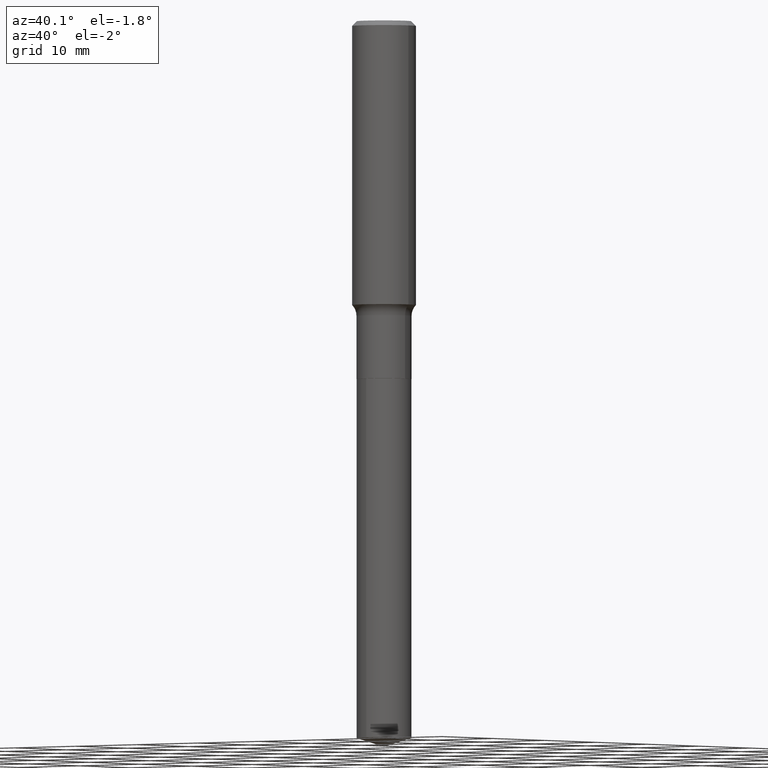
[diagram: clean part render]
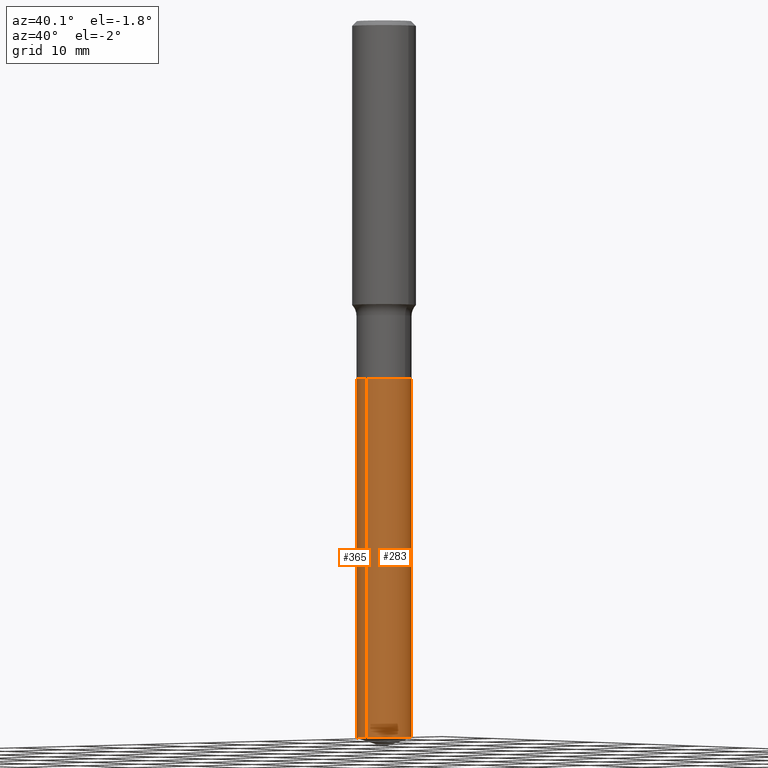
[diagram: same view with one multi-face feature highlighted, each face labeled with its STEP entity id]
A machine part, auxiliary view. The highlighted faces form ONE feature: a constant-radius fillet chain: 2 tangent blend faces with common blend radius 3.4506 mm. The faces share edges in the B-rep.
Their STEP definitions:
[1] entity #283 (Cylinder):
#16 = VECTOR ( 'NONE', #222, 39.37007874015748143 ) ;
#42 = EDGE_LOOP ( 'NONE', ( #78, #265, #342, #371 ) ) ;
#51 = CARTESIAN_POINT ( 'NONE',  ( 8.656689508304857644E-29, -1.235929816798233423E-14, -3.539866659530789939 ) ) ;
#69 = LINE ( 'NONE', #184, #457 ) ;
#73 = CARTESIAN_POINT ( 'NONE',  ( 9.652723065301828668E-16, 0.1358499999999876473, -3.539866659530790383 ) ) ;
#78 = ORIENTED_EDGE ( 'NONE', *, *, #112, .T. ) ;
#98 = AXIS2_PLACEMENT_3D ( 'NONE', #51, #119, #318 ) ;
#102 = CARTESIAN_POINT ( 'NONE',  ( 4.323099755574085042E-29, -6.172240710806913353E-15, -1.767800000000000260 ) ) ;
#104 = LINE ( 'NONE', #341, #16 ) ;
#106 = AXIS2_PLACEMENT_3D ( 'NONE', #288, #134, #410 ) ;
#110 = CARTESIAN_POINT ( 'NONE',  ( 9.652723065301826696E-16, 0.1358499999999938090, -1.767800000000000704 ) ) ;
#112 = EDGE_CURVE ( 'NONE', #338, #378, #252, .T. ) ;
#119 = DIRECTION ( 'NONE',  ( -2.445500415812927878E-29, 3.491436072057040114E-15, 1.000000000000000000 ) ) ;
#134 = DIRECTION ( 'NONE',  ( -2.445500415812927878E-29, 3.491436072057040114E-15, 1.000000000000000000 ) ) ;
#184 = CARTESIAN_POINT ( 'NONE',  ( 9.652723065301390850E-16, 0.1358499999999938368, -1.767800000000000704 ) ) ;
#215 = DIRECTION ( 'NONE',  ( -2.445500415812927878E-29, 3.491436072057040114E-15, 1.000000000000000000 ) ) ;
#222 = DIRECTION ( 'NONE',  ( -2.445500415812928158E-29, 3.491436072057040114E-15, 1.000000000000000000 ) ) ;
#224 = EDGE_CURVE ( 'NONE', #385, #456, #301, .T. ) ;
#230 = DIRECTION ( 'NONE',  ( -2.445500415812928158E-29, 3.491436072057040114E-15, 1.000000000000000000 ) ) ;
#252 = CIRCLE ( 'NONE', #98, 0.1358499999999999985 ) ;
#265 = ORIENTED_EDGE ( 'NONE', *, *, #440, .T. ) ;
#266 = CARTESIAN_POINT ( 'NONE',  ( -9.486354797635925800E-16, -0.1358500000000124053, -3.539866659530789050 ) ) ;
#283 = ADVANCED_FACE ( 'NONE', ( #406 ), #471, .T. ) ;
#288 = CARTESIAN_POINT ( 'NONE',  ( 4.323099755574085042E-29, -6.172240710806913353E-15, -1.767800000000000260 ) ) ;
#293 = DIRECTION ( 'NONE',  ( -6.982962677686266711E-15, -1.000000000000000000, 4.021859394426593130E-15 ) ) ;
#301 = CIRCLE ( 'NONE', #413, 0.1358499999999999985 ) ;
#318 = DIRECTION ( 'NONE',  ( -6.982962677686266711E-15, -1.000000000000000000, 4.021859394426593130E-15 ) ) ;
#338 = VERTEX_POINT ( 'NONE', #266 ) ;
#341 = CARTESIAN_POINT ( 'NONE',  ( -9.486354797636361646E-16, -0.1358500000000061603, -1.767799999999999594 ) ) ;
#342 = ORIENTED_EDGE ( 'NONE', *, *, #224, .F. ) ;
#371 = ORIENTED_EDGE ( 'NONE', *, *, #380, .F. ) ;
#378 = VERTEX_POINT ( 'NONE', #73 ) ;
#380 = EDGE_CURVE ( 'NONE', #338, #385, #104, .T. ) ;
#385 = VERTEX_POINT ( 'NONE', #485 ) ;
#406 = FACE_OUTER_BOUND ( 'NONE', #42, .T. ) ;
#410 = DIRECTION ( 'NONE',  ( -6.982962677686266711E-15, -1.000000000000000000, 4.021859394426593130E-15 ) ) ;
#413 = AXIS2_PLACEMENT_3D ( 'NONE', #102, #215, #293 ) ;
#440 = EDGE_CURVE ( 'NONE', #378, #456, #69, .T. ) ;
#456 = VERTEX_POINT ( 'NONE', #110 ) ;
#457 = VECTOR ( 'NONE', #230, 39.37007874015748143 ) ;
#471 = CYLINDRICAL_SURFACE ( 'NONE', #106, 0.1358499999999999985 ) ;
#485 = CARTESIAN_POINT ( 'NONE',  ( -9.486354797636361646E-16, -0.1358500000000061603, -1.767799999999999594 ) ) ;
[2] entity #365 (Cylinder):
#16 = VECTOR ( 'NONE', #222, 39.37007874015748143 ) ;
#22 = AXIS2_PLACEMENT_3D ( 'NONE', #463, #280, #124 ) ;
#40 = EDGE_LOOP ( 'NONE', ( #226, #330, #259, #304 ) ) ;
#69 = LINE ( 'NONE', #184, #457 ) ;
#73 = CARTESIAN_POINT ( 'NONE',  ( 9.652723065301828668E-16, 0.1358499999999876473, -3.539866659530790383 ) ) ;
#104 = LINE ( 'NONE', #341, #16 ) ;
#110 = CARTESIAN_POINT ( 'NONE',  ( 9.652723065301826696E-16, 0.1358499999999938090, -1.767800000000000704 ) ) ;
#118 = EDGE_CURVE ( 'NONE', #456, #385, #437, .T. ) ;
#124 = DIRECTION ( 'NONE',  ( -6.982962677686266711E-15, -1.000000000000000000, 4.021859394426593130E-15 ) ) ;
#139 = DIRECTION ( 'NONE',  ( -2.445500415812927878E-29, 3.491436072057040114E-15, 1.000000000000000000 ) ) ;
#150 = CIRCLE ( 'NONE', #349, 0.1358499999999999985 ) ;
#166 = DIRECTION ( 'NONE',  ( -2.445500415812927878E-29, 3.491436072057040114E-15, 1.000000000000000000 ) ) ;
#182 = AXIS2_PLACEMENT_3D ( 'NONE', #270, #139, #425 ) ;
#184 = CARTESIAN_POINT ( 'NONE',  ( 9.652723065301390850E-16, 0.1358499999999938368, -1.767800000000000704 ) ) ;
#207 = EDGE_CURVE ( 'NONE', #378, #338, #150, .T. ) ;
#222 = DIRECTION ( 'NONE',  ( -2.445500415812928158E-29, 3.491436072057040114E-15, 1.000000000000000000 ) ) ;
#226 = ORIENTED_EDGE ( 'NONE', *, *, #440, .F. ) ;
#230 = DIRECTION ( 'NONE',  ( -2.445500415812928158E-29, 3.491436072057040114E-15, 1.000000000000000000 ) ) ;
#259 = ORIENTED_EDGE ( 'NONE', *, *, #380, .T. ) ;
#266 = CARTESIAN_POINT ( 'NONE',  ( -9.486354797635925800E-16, -0.1358500000000124053, -3.539866659530789050 ) ) ;
#270 = CARTESIAN_POINT ( 'NONE',  ( 4.323099755574085042E-29, -6.172240710806913353E-15, -1.767800000000000260 ) ) ;
#280 = DIRECTION ( 'NONE',  ( -2.445500415812927878E-29, 3.491436072057040114E-15, 1.000000000000000000 ) ) ;
#304 = ORIENTED_EDGE ( 'NONE', *, *, #118, .F. ) ;
#306 = CYLINDRICAL_SURFACE ( 'NONE', #182, 0.1358499999999999985 ) ;
#326 = DIRECTION ( 'NONE',  ( -6.982962677686266711E-15, -1.000000000000000000, 4.021859394426593130E-15 ) ) ;
#330 = ORIENTED_EDGE ( 'NONE', *, *, #207, .T. ) ;
#338 = VERTEX_POINT ( 'NONE', #266 ) ;
#341 = CARTESIAN_POINT ( 'NONE',  ( -9.486354797636361646E-16, -0.1358500000000061603, -1.767799999999999594 ) ) ;
#349 = AXIS2_PLACEMENT_3D ( 'NONE', #438, #166, #326 ) ;
#365 = ADVANCED_FACE ( 'NONE', ( #417 ), #306, .T. ) ;
#378 = VERTEX_POINT ( 'NONE', #73 ) ;
#380 = EDGE_CURVE ( 'NONE', #338, #385, #104, .T. ) ;
#385 = VERTEX_POINT ( 'NONE', #485 ) ;
#417 = FACE_OUTER_BOUND ( 'NONE', #40, .T. ) ;
#425 = DIRECTION ( 'NONE',  ( -6.982962677686266711E-15, -1.000000000000000000, 4.021859394426593130E-15 ) ) ;
#437 = CIRCLE ( 'NONE', #22, 0.1358499999999999985 ) ;
#438 = CARTESIAN_POINT ( 'NONE',  ( 8.656689508304857644E-29, -1.235929816798233423E-14, -3.539866659530789939 ) ) ;
#440 = EDGE_CURVE ( 'NONE', #378, #456, #69, .T. ) ;
#456 = VERTEX_POINT ( 'NONE', #110 ) ;
#457 = VECTOR ( 'NONE', #230, 39.37007874015748143 ) ;
#463 = CARTESIAN_POINT ( 'NONE',  ( 4.323099755574085042E-29, -6.172240710806913353E-15, -1.767800000000000260 ) ) ;
#485 = CARTESIAN_POINT ( 'NONE',  ( -9.486354797636361646E-16, -0.1358500000000061603, -1.767799999999999594 ) ) ;